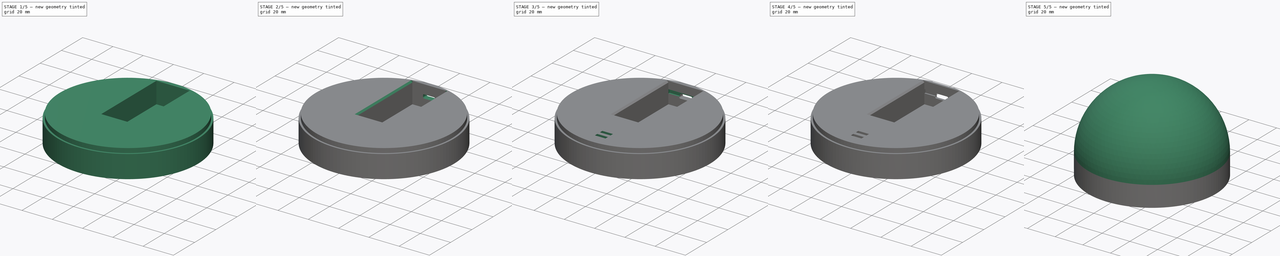
[diagram: build sequence overview — one tinted view per stage of 5, left to right]
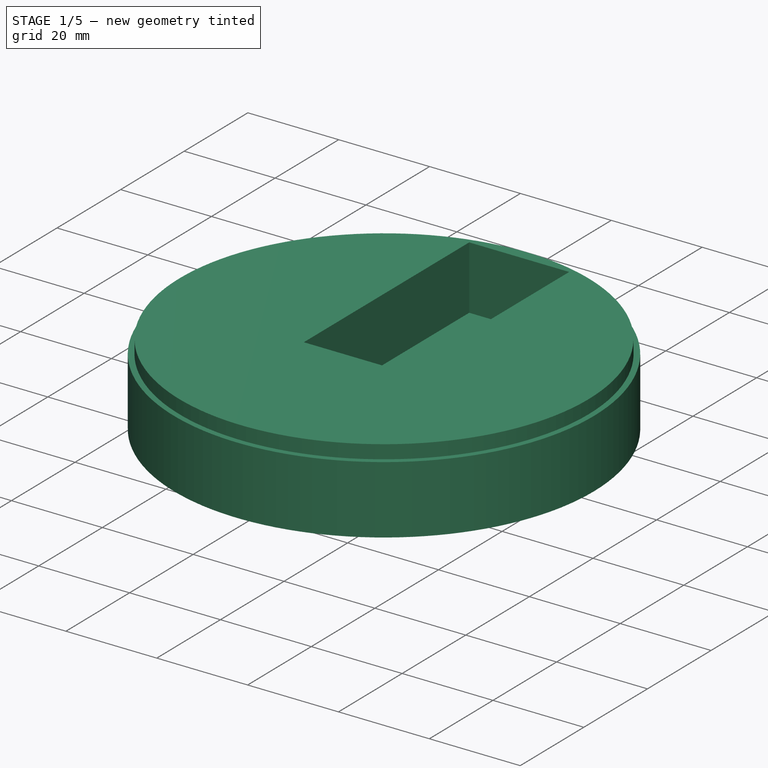
[diagram: stage 1 of 5 — iso view after this stage's code; geometry added in this stage tinted green]
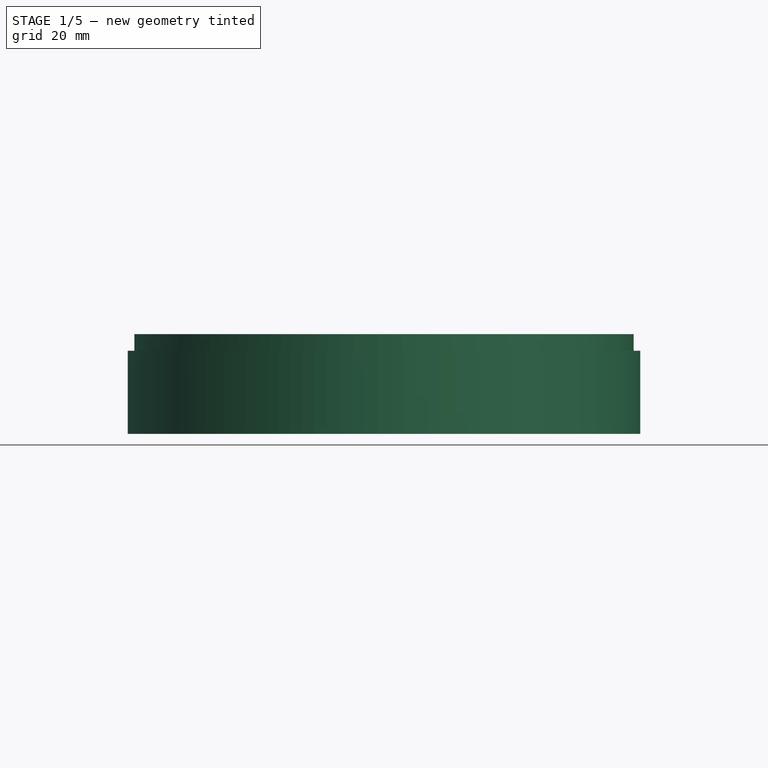
[diagram: stage 1 of 5 — front view after this stage's code; geometry added in this stage tinted green]
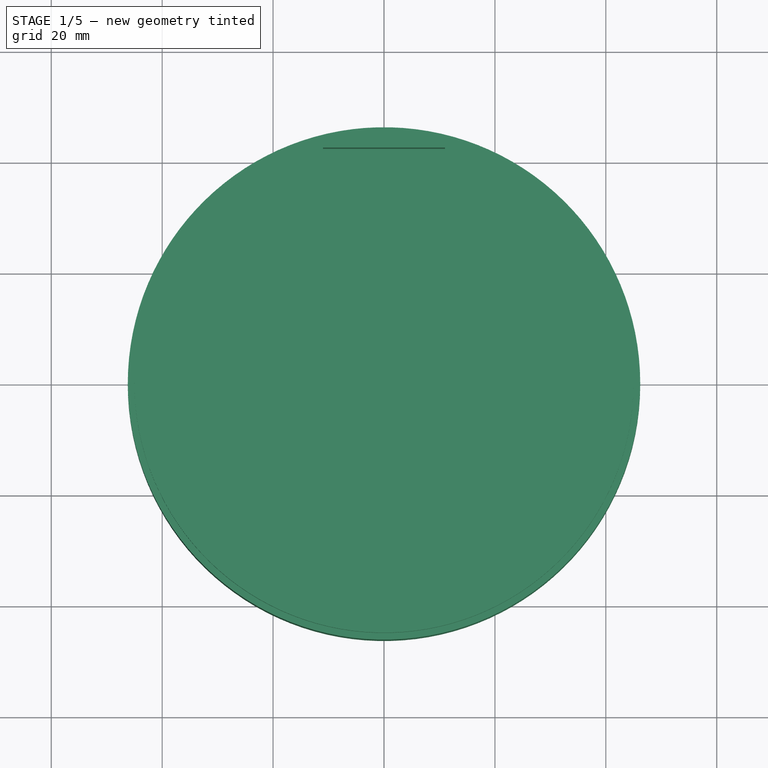
[diagram: stage 1 of 5 — top view after this stage's code; geometry added in this stage tinted green]
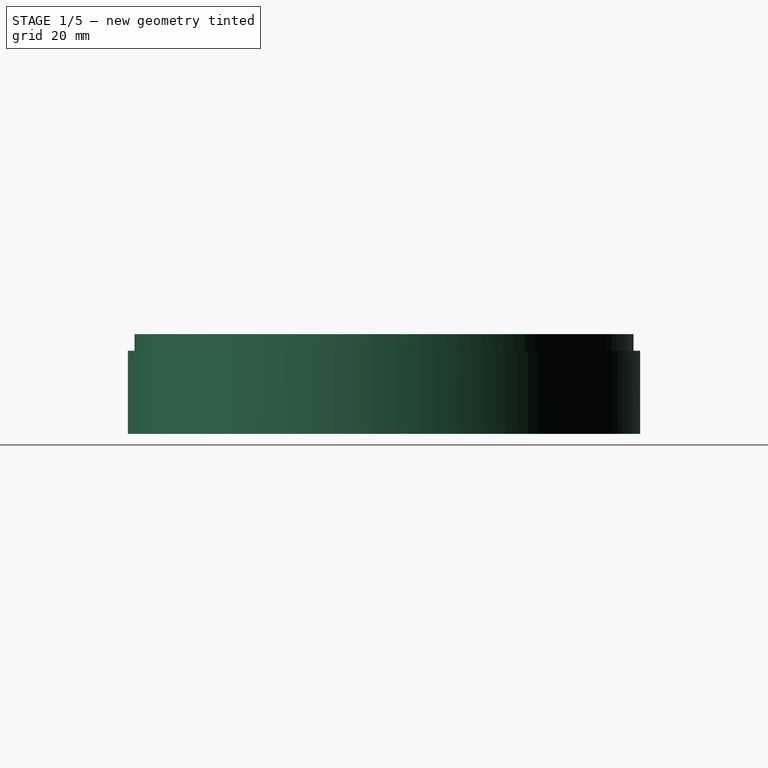
[diagram: stage 1 of 5 — right view after this stage's code; geometry added in this stage tinted green]
FCSTD DOCUMENT  (FreeCAD 0.19R)
Label: colortime_3d_nosound
License: All rights reserved
LicenseURL: http://en.wikipedia.org/wiki/All_rights_reserved
objects: Sketcher::SketchObject×9, PartDesign::Pocket×6, PartDesign::Pad×3, Part::Sphere×2, Part::Refine×2, PartDesign::Fillet×2, PartDesign::Chamfer×2, App::DocumentObjectGroup×2, Part::Cut×1, PartDesign::Body×1
note: 41 computed .brp shape members not serialized (recipe doc carries the construction recipe); baked Part::Feature solids carry a one-line shape summary decoded from their .brp

FEATURE [Part::Refine] Cut001001
  Source = -> Cut001
FEATURE [Sketcher::SketchObject] Sketch
  FullyConstrained = true
  MapMode = 5
  Support = -> [XY_Plane]
  sketch-geometry (1):
    g0: Circle CenterX=0 CenterY=0 CenterZ=0 NormalX=0 NormalY=0 NormalZ=1 AngleXU=0 Radius=46.2
  constraints (2):
    c: Coincident(g0,g-1)
    c: Radius(g0) = 46.2
FEATURE [PartDesign::Pad] Pad
  Direction = (1,1,1)
  Length = 15
  Length2 = 100
  Profile = -> Sketch
  Reversed = true
  Type = 0
FEATURE [Sketcher::SketchObject] Sketch001
  FullyConstrained = true
  MapMode = 5
  Support = -> [Pad]
  sketch-geometry (1):
    g0: Circle CenterX=0 CenterY=0 CenterZ=0 NormalX=0 NormalY=0 NormalZ=1 AngleXU=0 Radius=45
  constraints (2):
    c: Coincident(g0,g-1)
    c: Radius(g0) = 45
FEATURE [PartDesign::Pad] Pad001
  BaseFeature = -> Pad
  Direction = (1,1,1)
  Length = 3
  Length2 = 100
  Profile = -> Sketch001
  Type = 0
FEATURE [Sketcher::SketchObject] Sketch002
  FullyConstrained = true
  MapMode = 5
  Placement = pos=(0,0,3) rot=(0,0,1;0rad)
  Support = -> [Pad001]
  sketch-geometry (4):
    g0: LineSegment StartX=-11 StartY=42.5 StartZ=0 EndX=11 EndY=42.5 EndZ=0
    g1: LineSegment StartX=11 StartY=42.5 StartZ=0 EndX=11 EndY=-9.5 EndZ=0
    g2: LineSegment StartX=11 StartY=-9.5 StartZ=0 EndX=-11 EndY=-9.5 EndZ=0
    g3: LineSegment StartX=-11 StartY=-9.5 StartZ=0 EndX=-11 EndY=42.5 EndZ=0
  constraints (11):
    c: Coincident(g0,g1)
    c: Coincident(g1,g2)
    c: Coincident(g2,g3)
    c: Coincident(g3,g0)
    c: Horizontal(g0)
    c: Vertical(g1)
    c: Vertical(g3)
    c: Symmetric(g1,g2,g-2)
    c: DistanceX(g2,g2) = 22
    c: DistanceY(g3,g3) = 52
    c: DistanceY(g-1,g0) = 42.5
FEATURE [PartDesign::Pocket] Pocket
  BaseFeature = -> Pad001
  Length = 14
  Length2 = 100
  Profile = -> Sketch002
  Type = 0
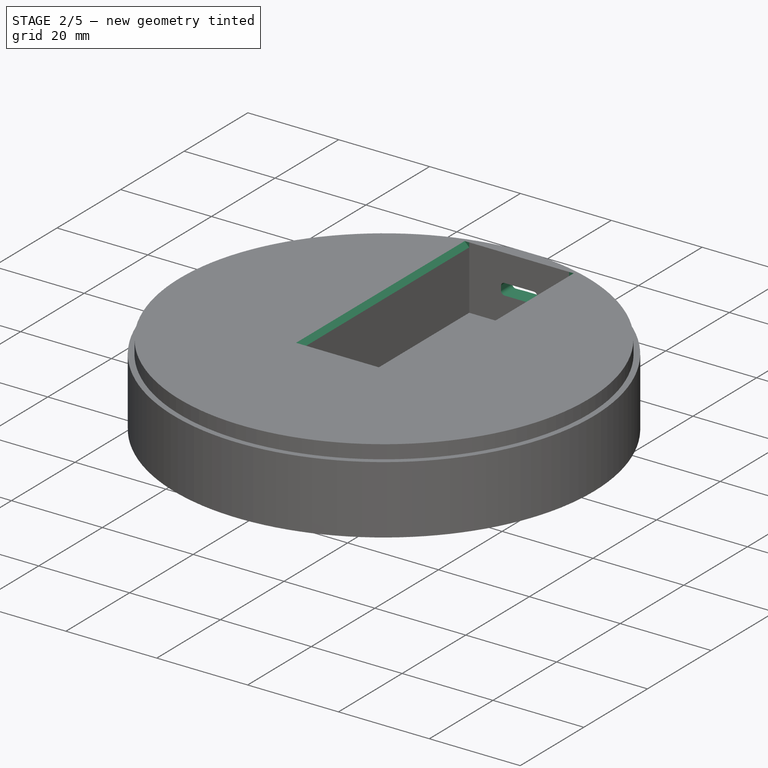
[diagram: stage 2 of 5 — iso view after this stage's code; geometry added in this stage tinted green]
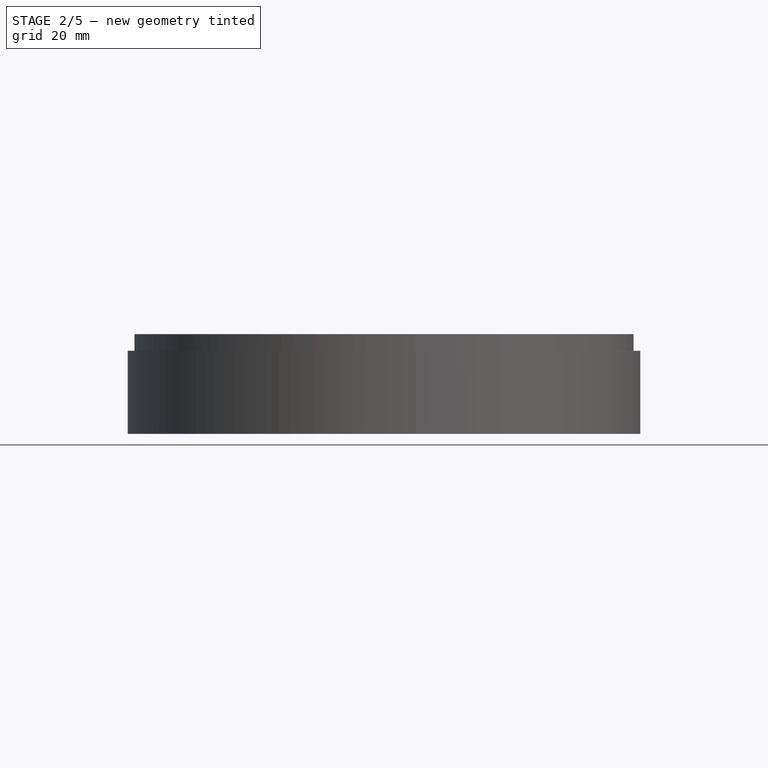
[diagram: stage 2 of 5 — front view after this stage's code; geometry added in this stage tinted green]
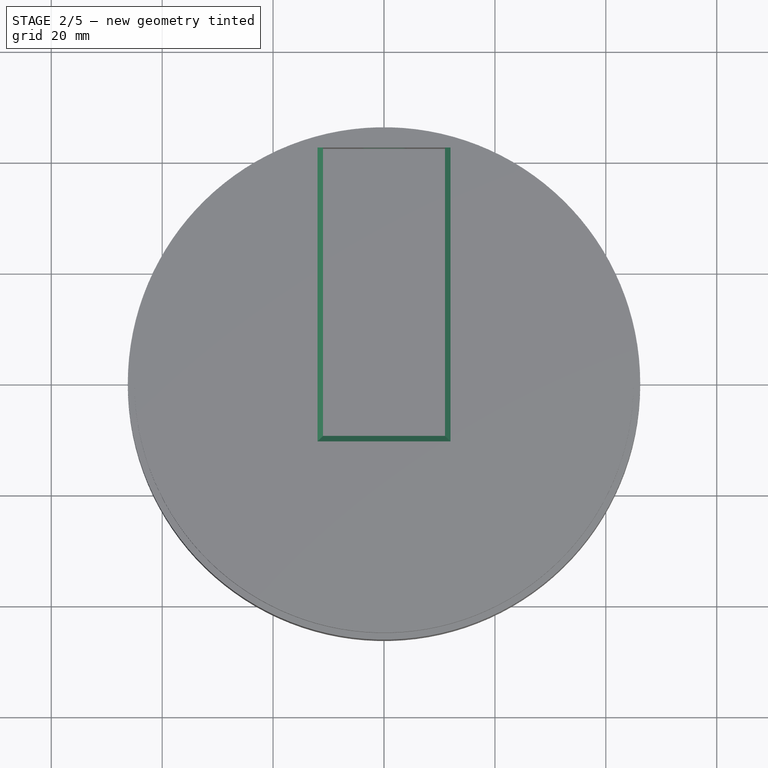
[diagram: stage 2 of 5 — top view after this stage's code; geometry added in this stage tinted green]
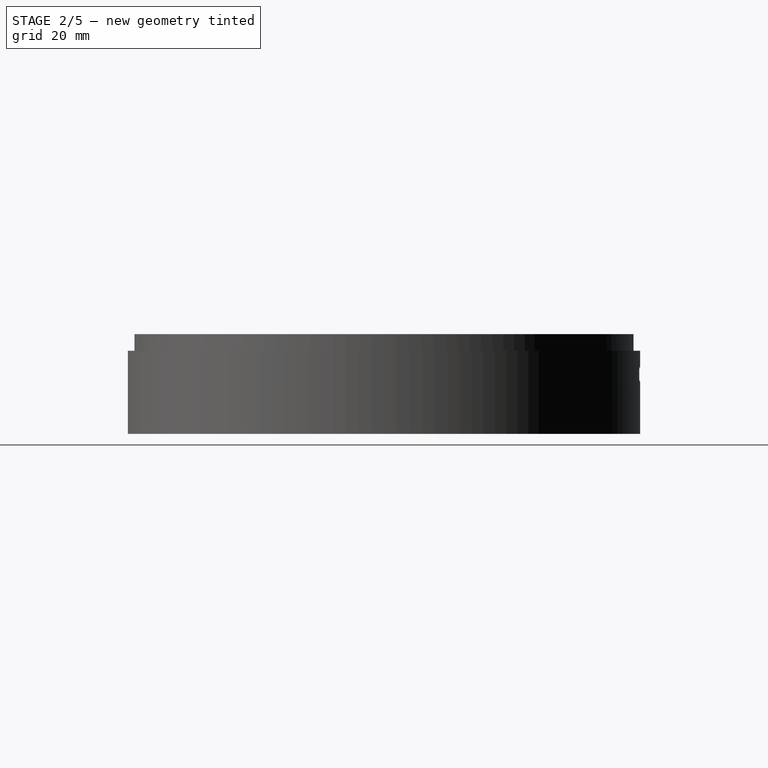
[diagram: stage 2 of 5 — right view after this stage's code; geometry added in this stage tinted green]
FEATURE [Sketcher::SketchObject] Sketch003
  ExternalGeometry = -> [Pocket]
  FullyConstrained = true
  MapMode = 5
  Placement = pos=(0,42.5,0) rot=(1,0,0;1.5708rad)
  Support = -> [Pocket]
  sketch-geometry (4):
    g0: LineSegment StartX=-4 StartY=-3 StartZ=0 EndX=4 EndY=-3 EndZ=0
    g1: LineSegment StartX=4 StartY=-3 StartZ=0 EndX=4 EndY=-5.5 EndZ=0
    g2: LineSegment StartX=4 StartY=-5.5 StartZ=0 EndX=-4 EndY=-5.5 EndZ=0
    g3: LineSegment StartX=-4 StartY=-5.5 StartZ=0 EndX=-4 EndY=-3 EndZ=0
  constraints (11):
    c: Coincident(g0,g1)
    c: Coincident(g1,g2)
    c: Coincident(g2,g3)
    c: Coincident(g3,g0)
    c: Horizontal(g2)
    c: Vertical(g1)
    c: Vertical(g3)
    c: Symmetric(g0,g0,g-2)
    c: DistanceY(g1,g1) = 2.5
    c: DistanceX(g0,g0) = 8
    c: DistanceY(g-3,g1) = 5.5
FEATURE [PartDesign::Pocket] Pocket001
  BaseFeature = -> Pocket
  Length = 5
  Length2 = 100
  Profile = -> Sketch003
  Type = 1
FEATURE [PartDesign::Fillet] Fillet
  Base = -> Pocket001 [Edge11,Edge15,Edge13,Edge10]
  BaseFeature = -> Pocket001
  Radius = 0.8
  SupportTransform = false
FEATURE [PartDesign::Chamfer] Chamfer
  Angle = 45
  Base = -> Fillet [Edge36,Edge39,Edge38]
  BaseFeature = -> Fillet
  ChamferType = 0
  FlipDirection = false
  Size = 1
  Size2 = 1
  SupportTransform = false
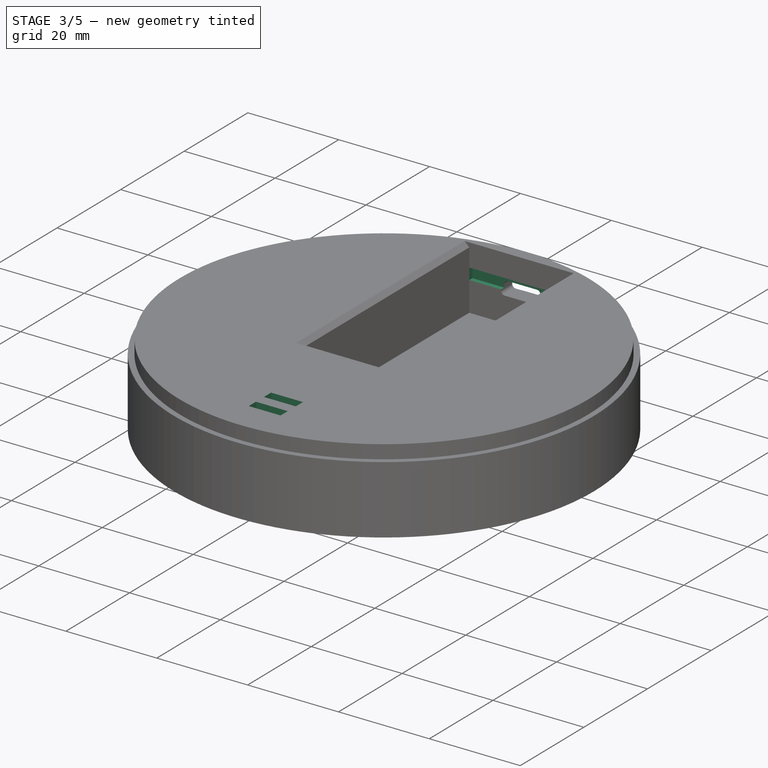
[diagram: stage 3 of 5 — iso view after this stage's code; geometry added in this stage tinted green]
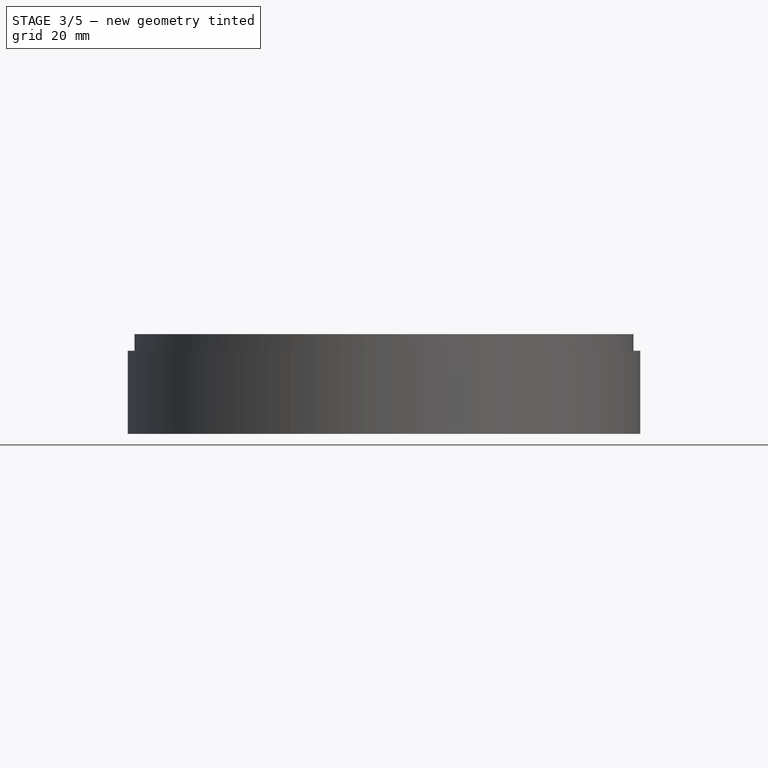
[diagram: stage 3 of 5 — front view after this stage's code; geometry added in this stage tinted green]
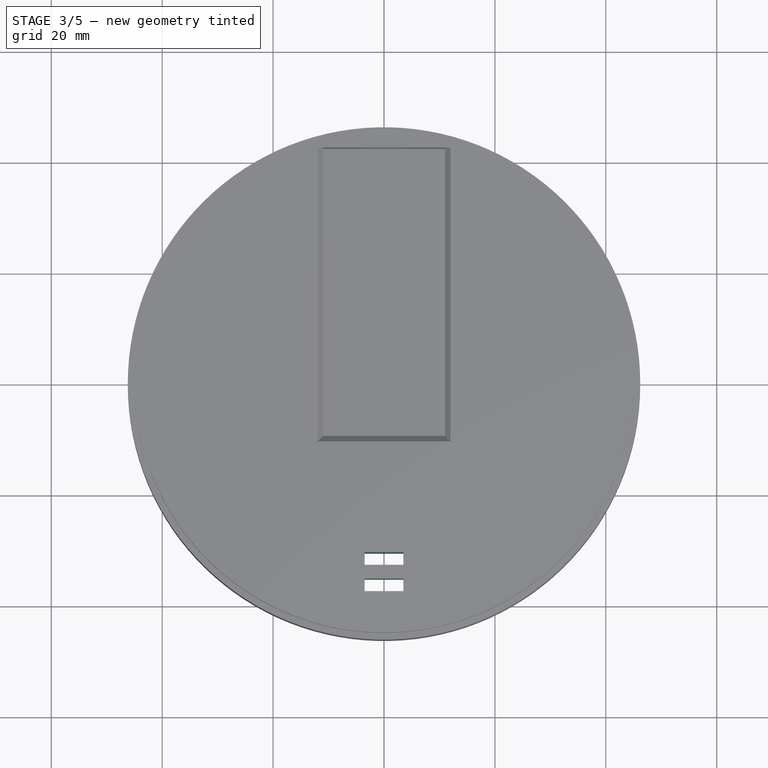
[diagram: stage 3 of 5 — top view after this stage's code; geometry added in this stage tinted green]
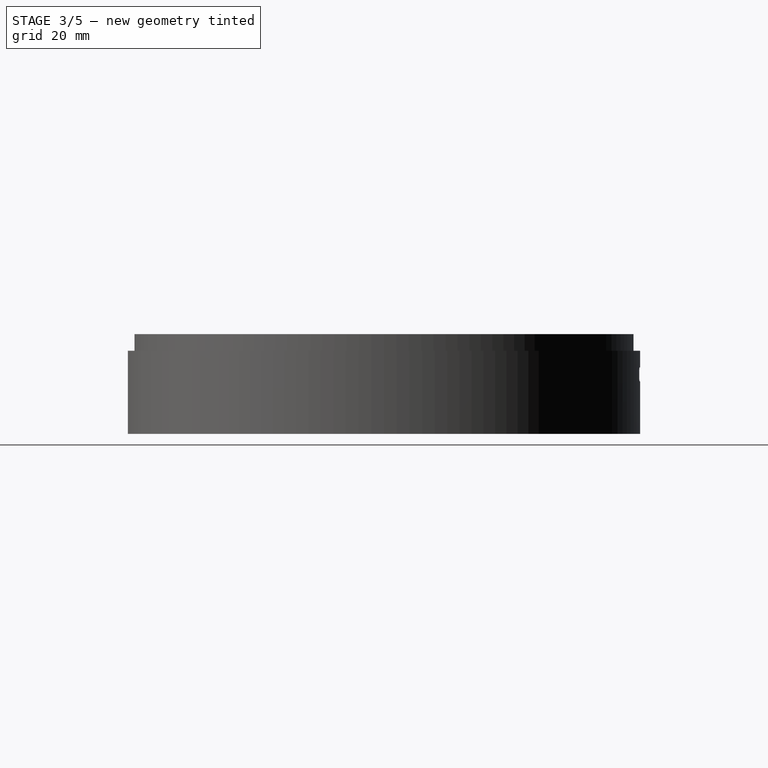
[diagram: stage 3 of 5 — right view after this stage's code; geometry added in this stage tinted green]
FEATURE [Part::Refine] Cut001001001
  Source = -> Cut001001
FEATURE [App::DocumentObjectGroup] Group  label="Top"
  Group = -> [Cut001,Cut001001,Cut001001001]
FEATURE [Sketcher::SketchObject] Sketch004
  FullyConstrained = true
  MapMode = 5
  Placement = pos=(0,0,-15) rot=(1,0,0;3.14159rad)
  Support = -> [Chamfer]
  sketch-geometry (4):
    g0: LineSegment StartX=-3.5 StartY=37.5 StartZ=0 EndX=3.5 EndY=37.5 EndZ=0
    g1: LineSegment StartX=3.5 StartY=37.5 StartZ=0 EndX=3.5 EndY=30.5 EndZ=0
    g2: LineSegment StartX=3.5 StartY=30.5 StartZ=0 EndX=-3.5 EndY=30.5 EndZ=0
    g3: LineSegment StartX=-3.5 StartY=30.5 StartZ=0 EndX=-3.5 EndY=37.5 EndZ=0
  constraints (11):
    c: Coincident(g0,g1)
    c: Coincident(g1,g2)
    c: Coincident(g2,g3)
    c: Coincident(g3,g0)
    c: Horizontal(g2)
    c: Vertical(g1)
    c: Vertical(g3)
    c: Equal(g0,g1)
    c: DistanceX(g0,g0) = 7
    c: Symmetric(g0,g0,g-2)
    c: DistanceY(g-1,g1) = 30.5
FEATURE [PartDesign::Pocket] Pocket002
  BaseFeature = -> Chamfer
  Length = 6
  Length2 = 100
  Profile = -> Sketch004
  Type = 0
FEATURE [Sketcher::SketchObject] Sketch005
  ExternalGeometry = -> [Pocket002]
  FullyConstrained = true
  MapMode = 5
  Placement = pos=(0,0,-9) rot=(1,0,0;3.14159rad)
  Support = -> [Pocket002]
  sketch-geometry (8):
    g0: LineSegment StartX=-3.5 StartY=37.5 StartZ=0 EndX=3.5 EndY=37.5 EndZ=0
    g1: LineSegment StartX=3.5 StartY=37.5 StartZ=0 EndX=3.5 EndY=35.25 EndZ=0
    g2: LineSegment StartX=3.5 StartY=35.25 StartZ=0 EndX=-3.5 EndY=35.25 EndZ=0
    g3: LineSegment StartX=-3.5 StartY=35.25 StartZ=0 EndX=-3.5 EndY=37.5 EndZ=0
    g4: LineSegment StartX=-3.5 StartY=32.75 StartZ=0 EndX=3.5 EndY=32.75 EndZ=0
    g5: LineSegment StartX=3.5 StartY=32.75 StartZ=0 EndX=3.5 EndY=30.5 EndZ=0
    g6: LineSegment StartX=3.5 StartY=30.5 StartZ=0 EndX=-3.5 EndY=30.5 EndZ=0
    g7: LineSegment StartX=-3.5 StartY=30.5 StartZ=0 EndX=-3.5 EndY=32.75 EndZ=0
  constraints (20):
    c: Coincident(g0,g1)
    c: Coincident(g1,g2)
    c: Coincident(g2,g3)
    c: Coincident(g3,g0)
    c: Horizontal(g2)
    c: Vertical(g1)
    c: Vertical(g3)
    c: Coincident(g0,g-3)
    c: Coincident(g4,g5)
    c: Coincident(g5,g6)
    c: Coincident(g6,g7)
    c: Coincident(g7,g4)
    c: Horizontal(g4)
    c: Vertical(g5)
    c: Vertical(g7)
    c: Coincident(g6,g-4)
    c: Coincident(g5,g-4)
    c: Coincident(g0,g-3)
    c: DistanceY(g4,g1) = 2.5
    c: Equal(g7,g3)
FEATURE [PartDesign::Pocket] Pocket003
  BaseFeature = -> Pocket002
  Length = 5
  Length2 = 100
  Profile = -> Sketch005
  Type = 1
FEATURE [PartDesign::Chamfer] Chamfer001
  Angle = 45
  Base = -> Pocket003 [Edge78,Edge85,Edge83,Edge84]
  BaseFeature = -> Pocket003
  ChamferType = 0
  FlipDirection = false
  Size = 2
  Size2 = 1
  SupportTransform = false
FEATURE [Sketcher::SketchObject] Sketch006
  ExternalGeometry = -> [Chamfer001]
  FullyConstrained = true
  MapMode = 5
  Placement = pos=(0,42.5,0) rot=(1,0,0;1.5708rad)
  Support = -> [Chamfer001]
  sketch-geometry (4):
    g0: LineSegment StartX=-11 StartY=-2 StartZ=0 EndX=11 EndY=-2 EndZ=0
    g1: LineSegment StartX=11 StartY=-2 StartZ=0 EndX=11 EndY=-4.5 EndZ=0
    g2: LineSegment StartX=11 StartY=-4.5 StartZ=0 EndX=-11 EndY=-4.5 EndZ=0
    g3: LineSegment StartX=-11 StartY=-4.5 StartZ=0 EndX=-11 EndY=-2 EndZ=0
  constraints (12):
    c: Coincident(g0,g1)
    c: Coincident(g1,g2)
    c: Coincident(g2,g3)
    c: Coincident(g3,g0)
    c: Horizontal(g0)
    c: Horizontal(g2)
    c: Vertical(g1)
    c: Vertical(g3)
    c: PointOnObject(g0,g-3)
    c: PointOnObject(g0,g-5)
    c: DistanceY(g-6,g2) = 1
    c: DistanceY(g3,g3) = 2.5
FEATURE [PartDesign::Pocket] Pocket004
  BaseFeature = -> Chamfer001
  Length = 1
  Length2 = 100
  Profile = -> Sketch006
  Type = 0
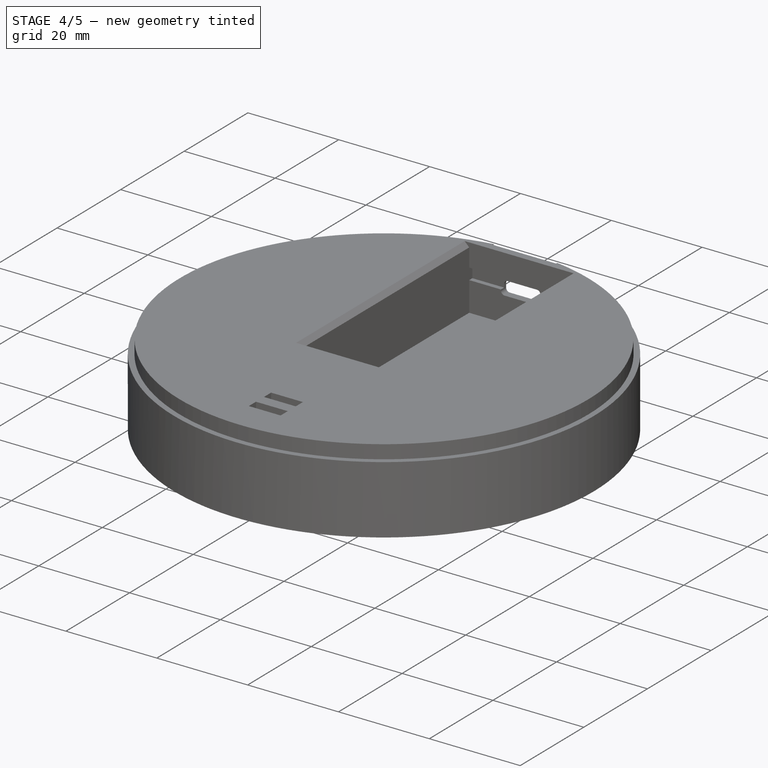
[diagram: stage 4 of 5 — iso view after this stage's code; geometry added in this stage tinted green]
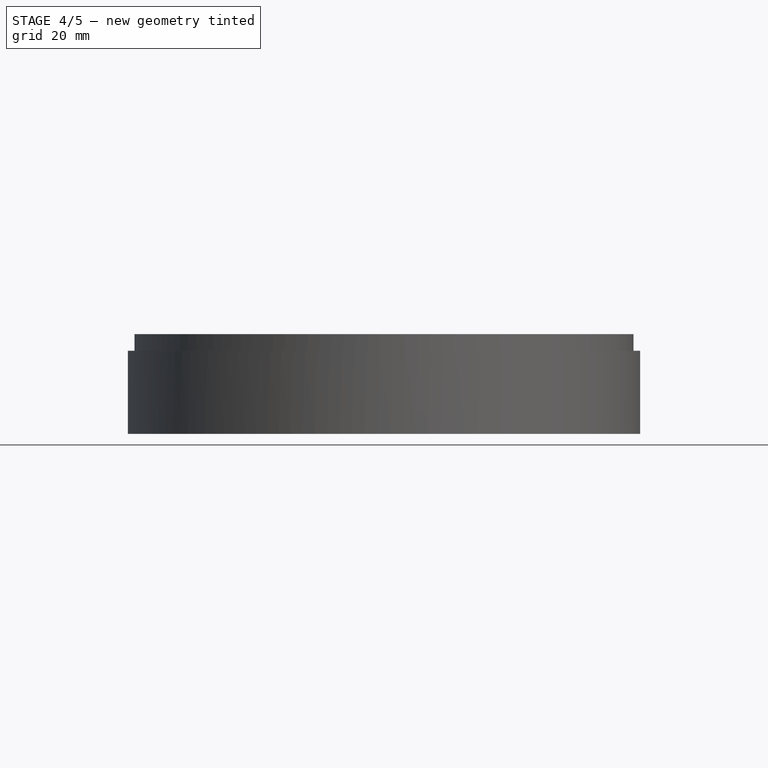
[diagram: stage 4 of 5 — front view after this stage's code; geometry added in this stage tinted green]
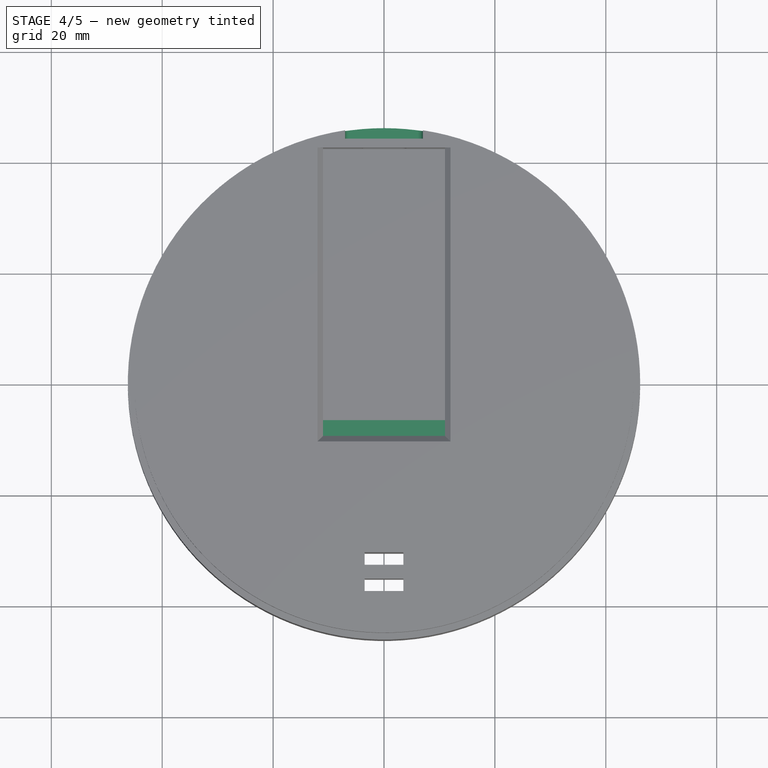
[diagram: stage 4 of 5 — top view after this stage's code; geometry added in this stage tinted green]
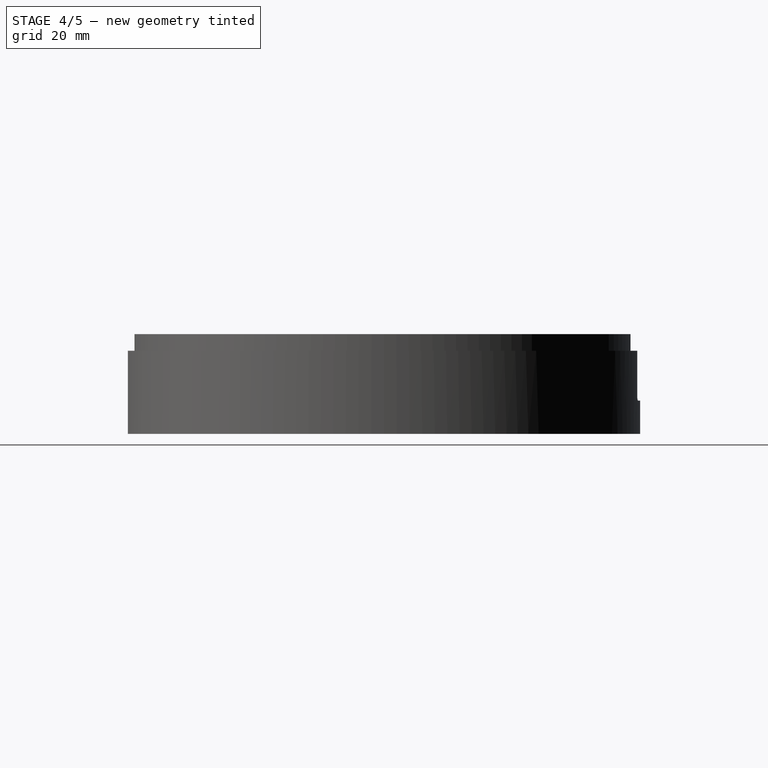
[diagram: stage 4 of 5 — right view after this stage's code; geometry added in this stage tinted green]
FEATURE [Sketcher::SketchObject] Sketch009
  ExternalGeometry = -> [Pocket004]
  FullyConstrained = true
  MapMode = 5
  Placement = pos=(0,0,-11) rot=(0,0,1;0rad)
  Support = -> [Pocket004]
  sketch-geometry (4):
    g0: LineSegment StartX=-11 StartY=-9.5 StartZ=0 EndX=11 EndY=-9.5 EndZ=0
    g1: LineSegment StartX=11 StartY=-9.5 StartZ=0 EndX=11 EndY=-6.5 EndZ=0
    g2: LineSegment StartX=11 StartY=-6.5 StartZ=0 EndX=-11 EndY=-6.5 EndZ=0
    g3: LineSegment StartX=-11 StartY=-6.5 StartZ=0 EndX=-11 EndY=-9.5 EndZ=0
  constraints (10):
    c: Coincident(g0,g1)
    c: Coincident(g1,g2)
    c: Coincident(g2,g3)
    c: Coincident(g3,g0)
    c: Horizontal(g2)
    c: Vertical(g1)
    c: Vertical(g3)
    c: Coincident(g0,g-3)
    c: Coincident(g-3,g0)
    c: DistanceY(g3,g3) = 3
FEATURE [PartDesign::Pad] Pad002
  BaseFeature = -> Pocket004
  Direction = (1,1,1)
  Length = 4
  Length2 = 100
  Profile = -> Sketch009
  Type = 0
FEATURE [Sketcher::SketchObject] Sketch010
  ExternalGeometry = -> [Pocket004]
  FullyConstrained = true
  MapMode = 5
  Placement = pos=(0,0,3) rot=(0,0,1;0rad)
  Support = -> [Pocket004]
  sketch-geometry (4):
    g0: LineSegment StartX=-7 StartY=54.1 StartZ=0 EndX=7 EndY=54.1 EndZ=0
    g1: LineSegment StartX=7 StartY=54.1 StartZ=0 EndX=7 EndY=44.1 EndZ=0
    g2: LineSegment StartX=7 StartY=44.1 StartZ=0 EndX=-7 EndY=44.1 EndZ=0
    g3: LineSegment StartX=-7 StartY=44.1 StartZ=0 EndX=-7 EndY=54.1 EndZ=0
  constraints (11):
    c: Coincident(g0,g1)
    c: Coincident(g1,g2)
    c: Coincident(g2,g3)
    c: Coincident(g3,g0)
    c: Horizontal(g0)
    c: Vertical(g1)
    c: Vertical(g3)
    c: Symmetric(g1,g2,g-2)
    c: DistanceX(g2,g2) = 14
    c: DistanceY(g1,g1) = 10
    c: DistanceY(g-3,g1) = 1.6
FEATURE [PartDesign::Pocket] Pocket005
  BaseFeature = -> Pad002
  Length = 12
  Length2 = 100
  Profile = -> Sketch010
  Type = 0
FEATURE [PartDesign::Fillet] Fillet001
  Base = -> Pocket005 [Edge65,Edge77]
  BaseFeature = -> Pocket005
  Radius = 1
  SupportTransform = false
FEATURE [PartDesign::Body] Body
  Group = -> [Sketch,Pad,Sketch001,Pad001,Sketch002,Pocket,Sketch003,Pocket001,Fillet,Chamfer,Sketch004,Pocket002,Sketch005,Pocket003,Chamfer001,Sketch006,Pocket004,Sketch009,Pad002,Sketch010,Pocket005,Fillet001]
  Origin = -> Origin
  Tip = -> Fillet001
FEATURE [App::DocumentObjectGroup] Group001  label="Bottom"
  Group = -> [Body]
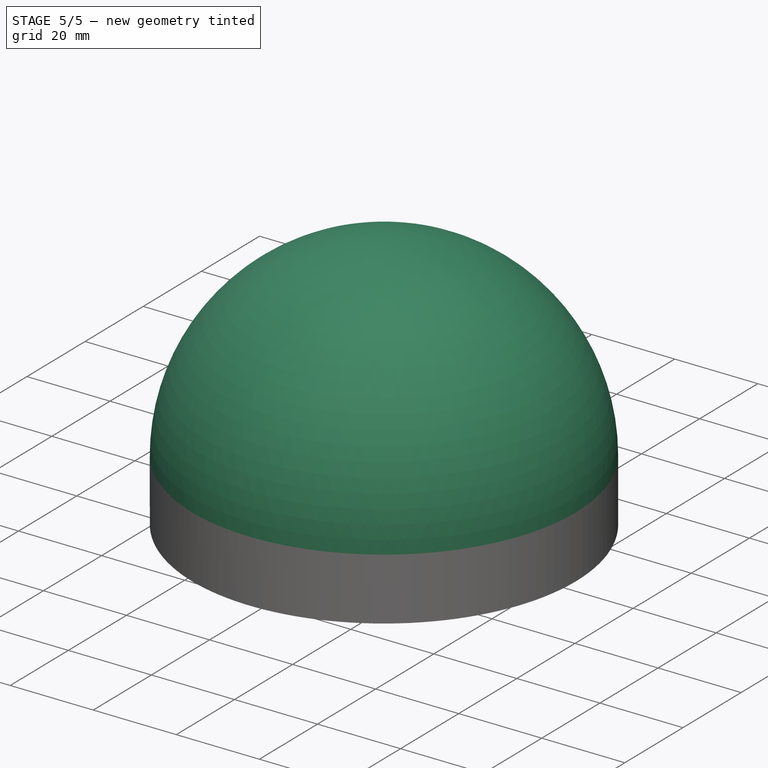
[diagram: stage 5 of 5 — iso view after this stage's code; geometry added in this stage tinted green]
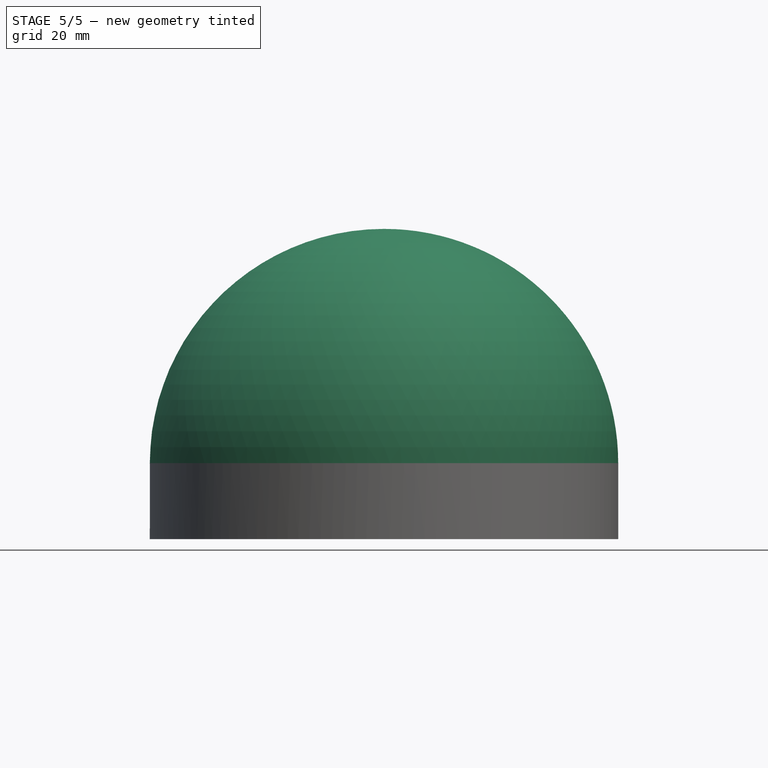
[diagram: stage 5 of 5 — front view after this stage's code; geometry added in this stage tinted green]
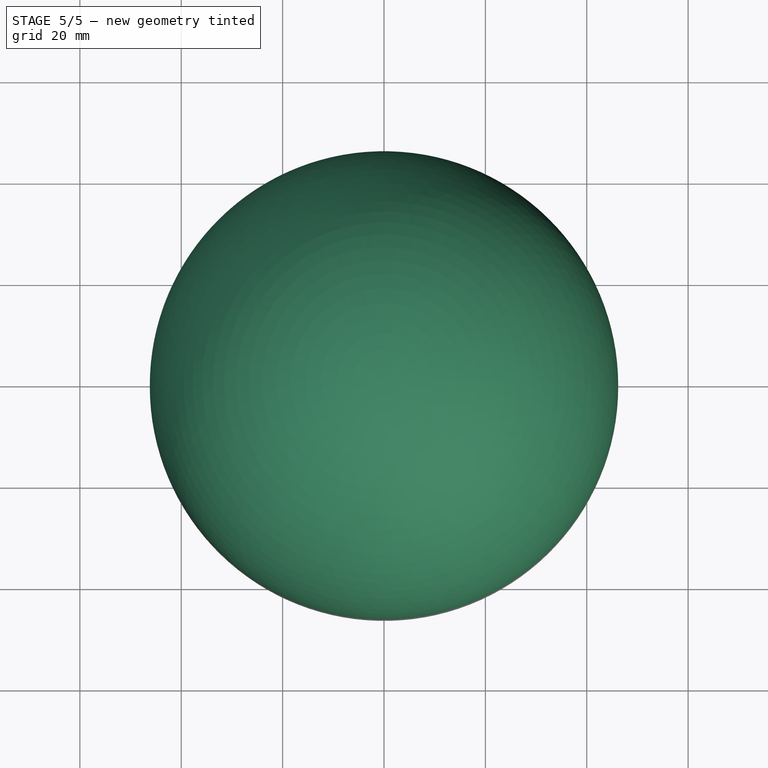
[diagram: stage 5 of 5 — top view after this stage's code; geometry added in this stage tinted green]
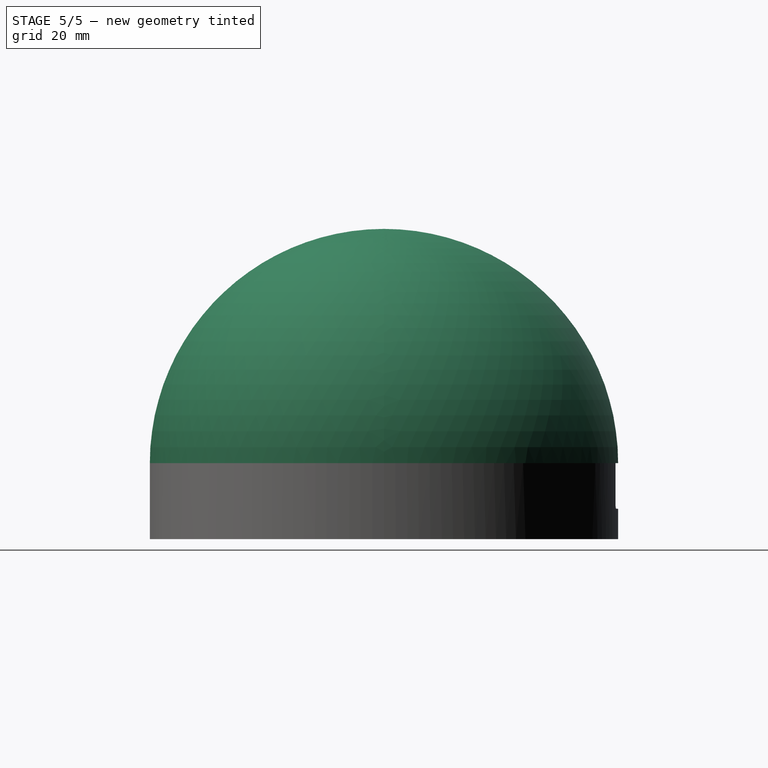
[diagram: stage 5 of 5 — right view after this stage's code; geometry added in this stage tinted green]
FEATURE [Part::Sphere] Sphere001
  Angle1 = 0
  Angle2 = 90
  Angle3 = 360
  AttacherType = Attacher::AttachEngine3D
  Radius = 45
FEATURE [Part::Sphere] Sphere002
  Angle1 = 0
  Angle2 = 90
  Angle3 = 360
  AttacherType = Attacher::AttachEngine3D
  Radius = 46.2
FEATURE [Part::Cut] Cut001
  Base = -> Sphere002
  Tool = -> Sphere001
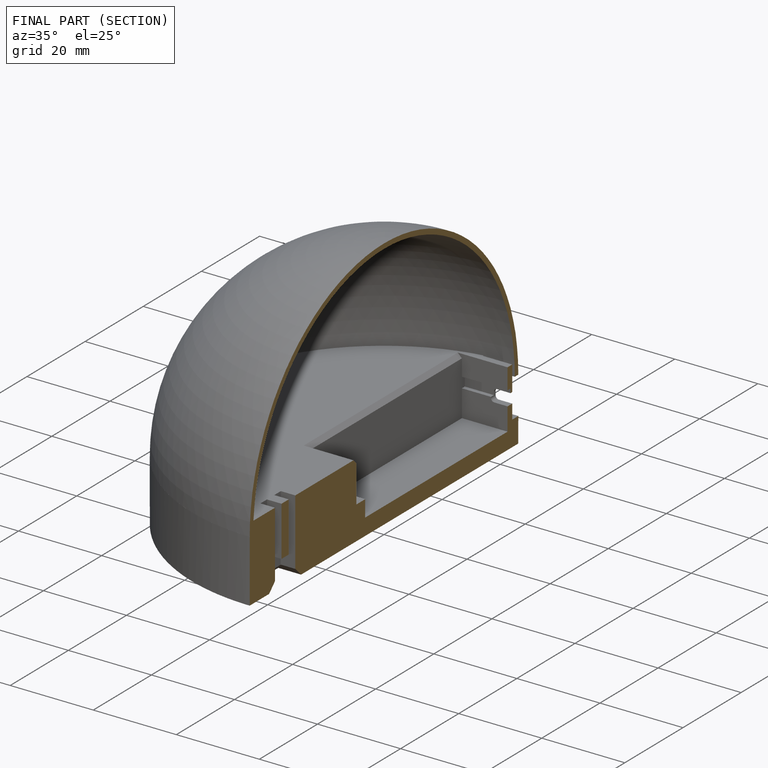
[diagram: finished part — half-section view (interior)]
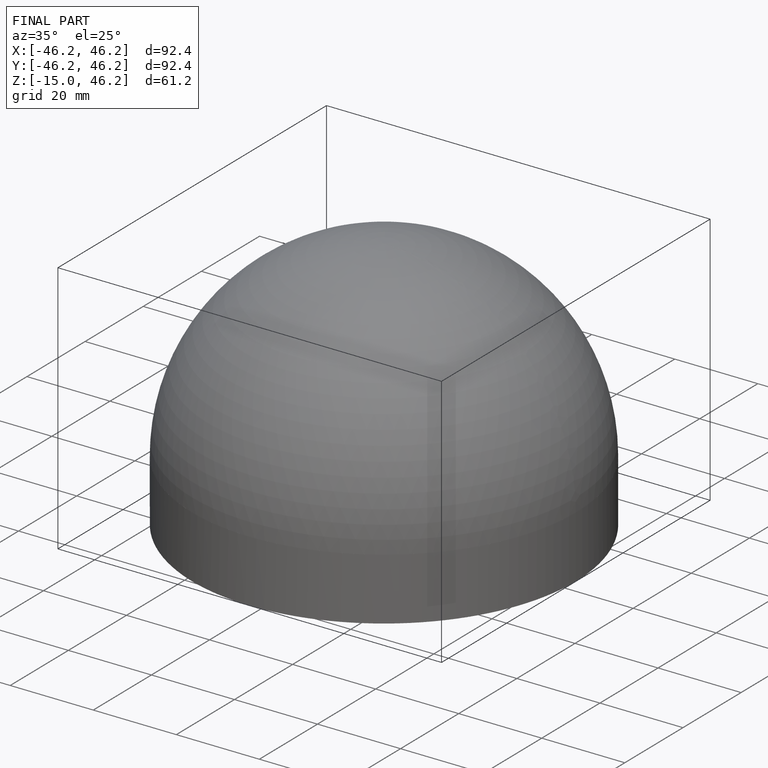
[diagram: finished part — iso view with bounding-box wireframe]
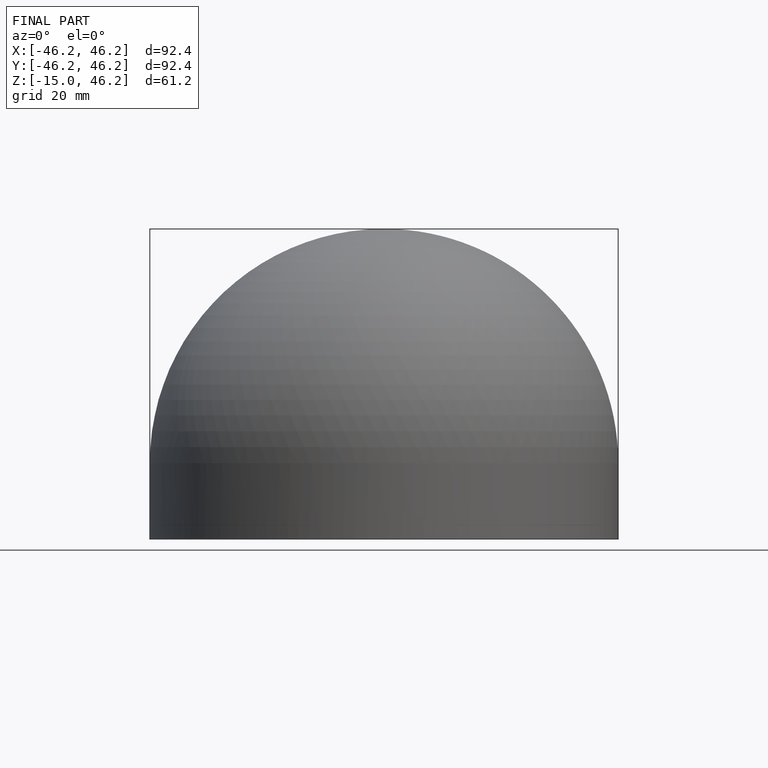
[diagram: finished part — front view with bounding-box wireframe]
